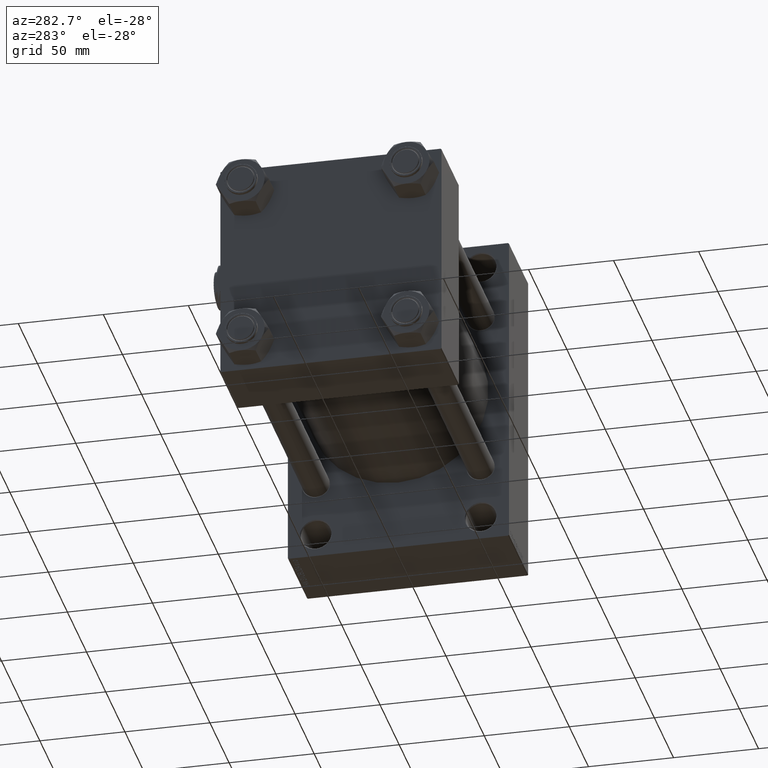
[diagram: clean part render]
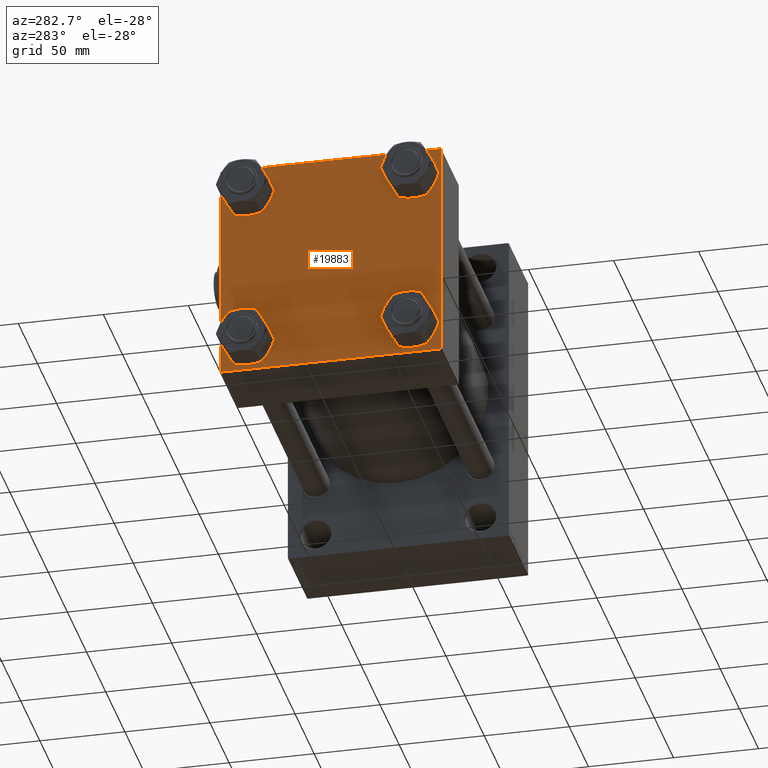
[diagram: same view with one face highlighted and labeled with its STEP entity id]
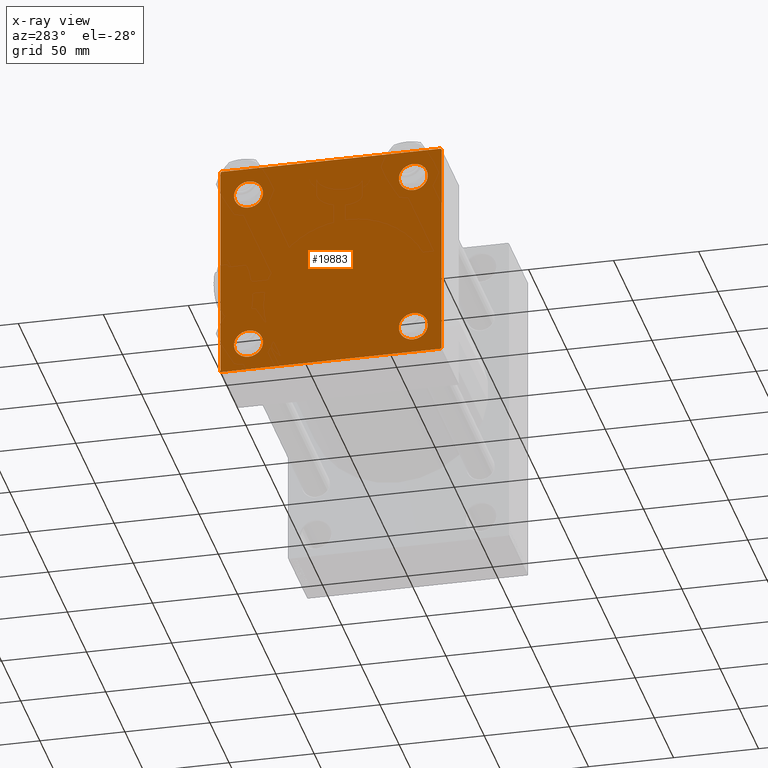
[diagram: x-ray of the same camera — body ghosted, the highlighted face saturated]
A machine part, auxiliary view. The second image highlights one B-rep face of the part: STEP entity #19883.
The next image is the same camera in x-ray: the body ghosted, the highlighted face saturated — about 0% of this face is hidden behind the body in this view.
In plain terms, the highlighted planar face has unit normal (-1, 0, 0).
Its self-contained STEP definition (entity closure, byte-faithful):
#262 = DIRECTION ( 'NONE',  ( -0.000000000000000000, 0.7071067811865672237, 0.7071067811865279218 ) ) ;
#327 = EDGE_CURVE ( 'NONE', #19104, #2218, #31854, .T. ) ;
#1392 = VERTEX_POINT ( 'NONE', #3983 ) ;
#1398 = VECTOR ( 'NONE', #24948, 1000.000000000000114 ) ;
#1521 = CARTESIAN_POINT ( 'NONE',  ( 0.000000000000000000, 64.49999999999997158, -64.99999999999998579 ) ) ;
#1655 = VERTEX_POINT ( 'NONE', #9826 ) ;
#1716 = VERTEX_POINT ( 'NONE', #15394 ) ;
#1921 = FACE_BOUND ( 'NONE', #31350, .T. ) ;
#1954 = VERTEX_POINT ( 'NONE', #1521 ) ;
#2183 = FACE_BOUND ( 'NONE', #24377, .T. ) ;
#2218 = VERTEX_POINT ( 'NONE', #19330 ) ;
#2827 = AXIS2_PLACEMENT_3D ( 'NONE', #32816, #44037, #5547 ) ;
#3983 = CARTESIAN_POINT ( 'NONE',  ( 0.000000000000000000, 48.45000000000000995, 39.95000000000000284 ) ) ;
#4084 = CARTESIAN_POINT ( 'NONE',  ( 0.000000000000000000, 65.00000000000000000, 64.49999999999998579 ) ) ;
#5070 = CARTESIAN_POINT ( 'NONE',  ( 0.000000000000000000, -48.44999999999999574, -56.95000000000003837 ) ) ;
#5268 = PLANE ( 'NONE',  #48331 ) ;
#5526 = CARTESIAN_POINT ( 'NONE',  ( 0.000000000000000000, 0.000000000000000000, 0.000000000000000000 ) ) ;
#5547 = DIRECTION ( 'NONE',  ( 0.000000000000000000, 0.000000000000000000, 1.000000000000000000 ) ) ;
#6617 = EDGE_CURVE ( 'NONE', #45135, #16325, #9976, .T. ) ;
#6716 = DIRECTION ( 'NONE',  ( 1.000000000000000000, -0.000000000000000000, 0.000000000000000000 ) ) ;
#6894 = VERTEX_POINT ( 'NONE', #4084 ) ;
#6911 = DIRECTION ( 'NONE',  ( 1.000000000000000000, -0.000000000000000000, 0.000000000000000000 ) ) ;
#7077 = DIRECTION ( 'NONE',  ( 0.000000000000000000, 0.000000000000000000, 1.000000000000000000 ) ) ;
#7301 = ORIENTED_EDGE ( 'NONE', *, *, #37876, .F. ) ;
#8464 = DIRECTION ( 'NONE',  ( 1.000000000000000000, -0.000000000000000000, 0.000000000000000000 ) ) ;
#9108 = EDGE_CURVE ( 'NONE', #23472, #38692, #47557, .T. ) ;
#9493 = CIRCLE ( 'NONE', #15208, 8.500000000000007105 ) ;
#9639 = LINE ( 'NONE', #33087, #21644 ) ;
#9826 = CARTESIAN_POINT ( 'NONE',  ( 0.000000000000000000, 48.45000000000000995, 56.95000000000002416 ) ) ;
#9883 = DIRECTION ( 'NONE',  ( 0.000000000000000000, -1.000000000000000000, -1.067522139062650425E-16 ) ) ;
#9936 = VERTEX_POINT ( 'NONE', #46715 ) ;
#9976 = CIRCLE ( 'NONE', #38464, 8.500000000000007105 ) ;
#10646 = CARTESIAN_POINT ( 'NONE',  ( 0.000000000000000000, -48.44999999999999574, 48.45000000000003126 ) ) ;
#10881 = AXIS2_PLACEMENT_3D ( 'NONE', #10646, #42000, #7077 ) ;
#11193 = DIRECTION ( 'NONE',  ( 1.000000000000000000, -0.000000000000000000, 0.000000000000000000 ) ) ;
#11504 = ORIENTED_EDGE ( 'NONE', *, *, #15250, .T. ) ;
#11734 = CARTESIAN_POINT ( 'NONE',  ( 0.000000000000000000, -48.44999999999999574, 48.45000000000003126 ) ) ;
#11840 = CARTESIAN_POINT ( 'NONE',  ( 0.000000000000000000, 65.00000000000000000, 65.00000000000001421 ) ) ;
#12029 = CARTESIAN_POINT ( 'NONE',  ( -0.000000000000000000, -64.74999999999819522, 64.75000000000179057 ) ) ;
#12305 = ORIENTED_EDGE ( 'NONE', *, *, #327, .T. ) ;
#13218 = CARTESIAN_POINT ( 'NONE',  ( 0.000000000000000000, 65.00000000000000000, 65.00000000000001421 ) ) ;
#13239 = CARTESIAN_POINT ( 'NONE',  ( 0.000000000000000000, -64.75000000000176215, -64.74999999999816680 ) ) ;
#13611 = CARTESIAN_POINT ( 'NONE',  ( 0.000000000000000000, 48.45000000000000995, -39.95000000000000284 ) ) ;
#13871 = VECTOR ( 'NONE', #262, 1000.000000000000000 ) ;
#14105 = CARTESIAN_POINT ( 'NONE',  ( 0.000000000000000000, 64.74999999999998579, 64.74999999999998579 ) ) ;
#15015 = CARTESIAN_POINT ( 'NONE',  ( 0.000000000000000000, 48.45000000000000995, 48.45000000000001705 ) ) ;
#15065 = CIRCLE ( 'NONE', #2827, 8.500000000000007105 ) ;
#15208 = AXIS2_PLACEMENT_3D ( 'NONE', #27846, #20678, #43401 ) ;
#15250 = EDGE_CURVE ( 'NONE', #1954, #25975, #9639, .T. ) ;
#15394 = CARTESIAN_POINT ( 'NONE',  ( 0.000000000000000000, 65.00000000000000000, -64.49999999999995737 ) ) ;
#15416 = LINE ( 'NONE', #11840, #33277 ) ;
#15433 = DIRECTION ( 'NONE',  ( 1.000000000000000000, -0.000000000000000000, 0.000000000000000000 ) ) ;
#15568 = ORIENTED_EDGE ( 'NONE', *, *, #31538, .T. ) ;
#16325 = VERTEX_POINT ( 'NONE', #37476 ) ;
#16559 = LINE ( 'NONE', #13239, #28982 ) ;
#17490 = FACE_BOUND ( 'NONE', #46699, .T. ) ;
#18082 = ORIENTED_EDGE ( 'NONE', *, *, #41571, .T. ) ;
#18165 = LINE ( 'NONE', #14105, #22635 ) ;
#18464 = EDGE_CURVE ( 'NONE', #6894, #1716, #33108, .T. ) ;
#19091 = CIRCLE ( 'NONE', #32938, 8.500000000000007105 ) ;
#19104 = VERTEX_POINT ( 'NONE', #13611 ) ;
#19330 = CARTESIAN_POINT ( 'NONE',  ( 0.000000000000000000, 48.45000000000000995, -56.95000000000002416 ) ) ;
#19747 = VECTOR ( 'NONE', #32851, 1000.000000000000000 ) ;
#19883 = ADVANCED_FACE ( 'NONE', ( #32557, #2183, #1921, #17490, #33053 ), #5268, .T. ) ;
#20337 = CARTESIAN_POINT ( 'NONE',  ( 0.000000000000000000, -48.44999999999999574, 39.95000000000001705 ) ) ;
#20351 = LINE ( 'NONE', #44835, #1398 ) ;
#20373 = ORIENTED_EDGE ( 'NONE', *, *, #6617, .T. ) ;
#20398 = CARTESIAN_POINT ( 'NONE',  ( 0.000000000000000000, -65.00000000000000000, 64.50000000000000000 ) ) ;
#20678 = DIRECTION ( 'NONE',  ( 1.000000000000000000, -0.000000000000000000, 0.000000000000000000 ) ) ;
#21556 = DIRECTION ( 'NONE',  ( -0.000000000000000000, 0.000000000000000000, 1.000000000000000000 ) ) ;
#21644 = VECTOR ( 'NONE', #9883, 1000.000000000000000 ) ;
#22248 = DIRECTION ( 'NONE',  ( 0.000000000000000000, 0.000000000000000000, 1.000000000000000000 ) ) ;
#22635 = VECTOR ( 'NONE', #45217, 1000.000000000000114 ) ;
#22864 = EDGE_CURVE ( 'NONE', #49458, #9936, #49035, .T. ) ;
#23472 = VERTEX_POINT ( 'NONE', #20337 ) ;
#24319 = CARTESIAN_POINT ( 'NONE',  ( 0.000000000000000000, -64.49999999999994316, -65.00000000000000000 ) ) ;
#24377 = EDGE_LOOP ( 'NONE', ( #39278, #20373 ) ) ;
#24626 = EDGE_LOOP ( 'NONE', ( #33883, #15568, #11504, #34127, #44083, #18082, #7301, #32947 ) ) ;
#24948 = DIRECTION ( 'NONE',  ( -0.000000000000000000, -0.7071067811865474617, -0.7071067811865474617 ) ) ;
#25321 = EDGE_CURVE ( 'NONE', #1655, #1392, #19091, .T. ) ;
#25449 = CARTESIAN_POINT ( 'NONE',  ( 0.000000000000000000, 48.45000000000000995, 48.45000000000001705 ) ) ;
#25975 = VERTEX_POINT ( 'NONE', #24319 ) ;
#26236 = DIRECTION ( 'NONE',  ( 0.000000000000000000, 0.000000000000000000, 1.000000000000000000 ) ) ;
#26806 = CARTESIAN_POINT ( 'NONE',  ( 0.000000000000000000, -65.00000000000000000, 65.00000000000000000 ) ) ;
#27256 = CIRCLE ( 'NONE', #37850, 8.500000000000007105 ) ;
#27846 = CARTESIAN_POINT ( 'NONE',  ( 0.000000000000000000, -48.44999999999999574, -48.45000000000003126 ) ) ;
#28093 = EDGE_CURVE ( 'NONE', #25975, #9936, #16559, .T. ) ;
#28978 = DIRECTION ( 'NONE',  ( -1.000000000000000000, 0.000000000000000000, -0.000000000000000000 ) ) ;
#28982 = VECTOR ( 'NONE', #44348, 1000.000000000000000 ) ;
#29506 = ORIENTED_EDGE ( 'NONE', *, *, #47209, .T. ) ;
#29814 = ORIENTED_EDGE ( 'NONE', *, *, #9108, .T. ) ;
#30977 = DIRECTION ( 'NONE',  ( 0.000000000000000000, -1.000000000000000000, -1.067522139062650425E-16 ) ) ;
#30990 = DIRECTION ( 'NONE',  ( 0.000000000000000000, 0.000000000000000000, 1.000000000000000000 ) ) ;
#31350 = EDGE_LOOP ( 'NONE', ( #12305, #29506 ) ) ;
#31428 = ORIENTED_EDGE ( 'NONE', *, *, #34111, .T. ) ;
#31538 = EDGE_CURVE ( 'NONE', #1716, #1954, #20351, .T. ) ;
#31854 = CIRCLE ( 'NONE', #40005, 8.500000000000007105 ) ;
#32200 = EDGE_CURVE ( 'NONE', #43536, #6894, #18165, .T. ) ;
#32385 = VERTEX_POINT ( 'NONE', #43648 ) ;
#32557 = FACE_BOUND ( 'NONE', #34941, .T. ) ;
#32816 = CARTESIAN_POINT ( 'NONE',  ( 0.000000000000000000, 48.45000000000000995, -48.45000000000001705 ) ) ;
#32851 = DIRECTION ( 'NONE',  ( 0.000000000000000000, 0.000000000000000000, -1.000000000000000000 ) ) ;
#32938 = AXIS2_PLACEMENT_3D ( 'NONE', #25449, #8464, #47480 ) ;
#32947 = ORIENTED_EDGE ( 'NONE', *, *, #32200, .T. ) ;
#33053 = FACE_OUTER_BOUND ( 'NONE', #24626, .T. ) ;
#33087 = CARTESIAN_POINT ( 'NONE',  ( 0.000000000000000000, 65.00000000000000000, -64.99999999999998579 ) ) ;
#33108 = LINE ( 'NONE', #13218, #19747 ) ;
#33232 = EDGE_CURVE ( 'NONE', #16325, #45135, #9493, .T. ) ;
#33277 = VECTOR ( 'NONE', #30977, 1000.000000000000000 ) ;
#33883 = ORIENTED_EDGE ( 'NONE', *, *, #18464, .T. ) ;
#34111 = EDGE_CURVE ( 'NONE', #1392, #1655, #45361, .T. ) ;
#34127 = ORIENTED_EDGE ( 'NONE', *, *, #28093, .T. ) ;
#34941 = EDGE_LOOP ( 'NONE', ( #44340, #29814 ) ) ;
#35056 = CARTESIAN_POINT ( 'NONE',  ( 0.000000000000000000, -48.44999999999999574, 56.95000000000003837 ) ) ;
#35552 = AXIS2_PLACEMENT_3D ( 'NONE', #15015, #11193, #26236 ) ;
#36220 = LINE ( 'NONE', #12029, #13871 ) ;
#36879 = ORIENTED_EDGE ( 'NONE', *, *, #25321, .T. ) ;
#37476 = CARTESIAN_POINT ( 'NONE',  ( 0.000000000000000000, -48.44999999999999574, -39.95000000000001705 ) ) ;
#37850 = AXIS2_PLACEMENT_3D ( 'NONE', #11734, #6911, #46178 ) ;
#37876 = EDGE_CURVE ( 'NONE', #43536, #32385, #15416, .T. ) ;
#38464 = AXIS2_PLACEMENT_3D ( 'NONE', #50390, #15433, #30990 ) ;
#38692 = VERTEX_POINT ( 'NONE', #35056 ) ;
#38875 = CARTESIAN_POINT ( 'NONE',  ( 0.000000000000000000, 64.49999999999997158, 65.00000000000001421 ) ) ;
#39278 = ORIENTED_EDGE ( 'NONE', *, *, #33232, .T. ) ;
#40005 = AXIS2_PLACEMENT_3D ( 'NONE', #49325, #6716, #22248 ) ;
#41571 = EDGE_CURVE ( 'NONE', #49458, #32385, #36220, .T. ) ;
#42000 = DIRECTION ( 'NONE',  ( 1.000000000000000000, -0.000000000000000000, 0.000000000000000000 ) ) ;
#43401 = DIRECTION ( 'NONE',  ( 0.000000000000000000, 0.000000000000000000, 1.000000000000000000 ) ) ;
#43536 = VERTEX_POINT ( 'NONE', #38875 ) ;
#43648 = CARTESIAN_POINT ( 'NONE',  ( 0.000000000000000000, -64.49999999999997158, 65.00000000000000000 ) ) ;
#44037 = DIRECTION ( 'NONE',  ( 1.000000000000000000, -0.000000000000000000, 0.000000000000000000 ) ) ;
#44083 = ORIENTED_EDGE ( 'NONE', *, *, #22864, .F. ) ;
#44340 = ORIENTED_EDGE ( 'NONE', *, *, #47157, .T. ) ;
#44348 = DIRECTION ( 'NONE',  ( 0.000000000000000000, -0.7071067811865279218, 0.7071067811865671127 ) ) ;
#44835 = CARTESIAN_POINT ( 'NONE',  ( 0.000000000000000000, 64.74999999999997158, -64.74999999999997158 ) ) ;
#45072 = VECTOR ( 'NONE', #45190, 1000.000000000000000 ) ;
#45135 = VERTEX_POINT ( 'NONE', #5070 ) ;
#45190 = DIRECTION ( 'NONE',  ( 0.000000000000000000, 0.000000000000000000, -1.000000000000000000 ) ) ;
#45217 = DIRECTION ( 'NONE',  ( 0.000000000000000000, 0.7071067811865474617, -0.7071067811865474617 ) ) ;
#45361 = CIRCLE ( 'NONE', #35552, 8.500000000000007105 ) ;
#46178 = DIRECTION ( 'NONE',  ( 0.000000000000000000, 0.000000000000000000, 1.000000000000000000 ) ) ;
#46699 = EDGE_LOOP ( 'NONE', ( #36879, #31428 ) ) ;
#46715 = CARTESIAN_POINT ( 'NONE',  ( 0.000000000000000000, -65.00000000000000000, -64.49999999999991473 ) ) ;
#47157 = EDGE_CURVE ( 'NONE', #38692, #23472, #27256, .T. ) ;
#47209 = EDGE_CURVE ( 'NONE', #2218, #19104, #15065, .T. ) ;
#47480 = DIRECTION ( 'NONE',  ( 0.000000000000000000, 0.000000000000000000, 1.000000000000000000 ) ) ;
#47557 = CIRCLE ( 'NONE', #10881, 8.500000000000007105 ) ;
#48331 = AXIS2_PLACEMENT_3D ( 'NONE', #5526, #28978, #21556 ) ;
#49035 = LINE ( 'NONE', #26806, #45072 ) ;
#49325 = CARTESIAN_POINT ( 'NONE',  ( 0.000000000000000000, 48.45000000000000995, -48.45000000000001705 ) ) ;
#49458 = VERTEX_POINT ( 'NONE', #20398 ) ;
#50390 = CARTESIAN_POINT ( 'NONE',  ( 0.000000000000000000, -48.44999999999999574, -48.45000000000003126 ) ) ;